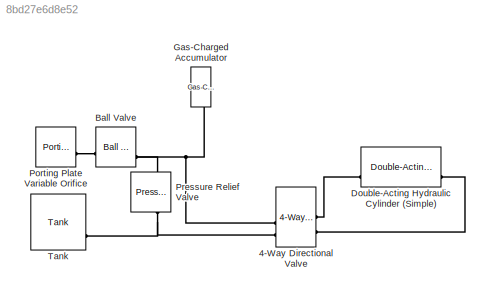
MODEL slx_8bd27e6d8e52
KIND model
CONFIG AbsTol = auto
CONFIG EnableMultiTasking = off
CONFIG FixedStep = auto
CONFIG MaxStep = auto
CONFIG MinStep = auto
CONFIG RelTol = 1e-3
CONFIG SampleTimeConstraint = Unconstrained
CONFIG SolverName = VariableStepAuto
CONFIG StartTime = 0.0
CONFIG StopTime = 10.0
BLOCK [Reference] 4-Way Directional Valve  REF=sh_lib/Valves/Directional Valves/4-Way Directional
Valve
  SourceBlock = sh_lib/Valves/Directional Valves/4-Way Directional\nValve
  SourceType = 4-Way Directional\nValve
BLOCK [Reference] Ball Valve  REF=sh_lib/Valves/Flow Control Valves/Ball Valve
  SourceBlock = sh_lib/Valves/Flow Control Valves/Ball Valve
  SourceType = Ball Valve
BLOCK [Reference] Double-Acting Hydraulic Cylinder (Simple)  REF=sh_lib/Hydraulic Cylinders/Double-Acting
Hydraulic Cylinder
(Simple)
  SourceBlock = sh_lib/Hydraulic Cylinders/Double-Acting\nHydraulic Cylinder\n(Simple)
  SourceType = Double-Acting\nHydraulic Cylinder\n(Simple)
BLOCK [Reference] Gas-Charged Accumulator  REF=sh_lib/Accumulators/Gas-Charged
Accumulator
  NameLocation = right
  SourceBlock = sh_lib/Accumulators/Gas-Charged\nAccumulator
  SourceType = Gas-Charged\nAccumulator
BLOCK [Reference] Porting Plate Variable Orifice  REF=sh_lib/Pumps and Motors/Porting Plate
Variable Orifice
  SourceBlock = sh_lib/Pumps and Motors/Porting Plate\nVariable Orifice
  SourceType = Porting Plate\nVariable Orifice
BLOCK [Reference] Pressure Relief Valve  REF=sh_lib/Valves/Pressure Control
Valves/Pressure Relief
Valve
  NameLocation = right
  SourceBlock = sh_lib/Valves/Pressure Control\nValves/Pressure Relief\nValve
  SourceType = Pressure Relief\nValve
BLOCK [Reference] Tank  REF=sh_lib/Low-Pressure Blocks/Tank
  SourceBlock = sh_lib/Low-Pressure Blocks/Tank
  SourceType = Tank
PLINE 4-Way Directional Valve:LConn1 -- Double-Acting Hydraulic Cylinder (Simple):LConn2
PLINE 4-Way Directional Valve:LConn2 -- Double-Acting Hydraulic Cylinder (Simple):RConn2
PNET net1: 4-Way Directional Valve:RConn2 -- Ball Valve:LConn2 -- Gas-Charged Accumulator:RConn1 -- Pressure Relief Valve:LConn1
PNET net2: 4-Way Directional Valve:RConn3 -- Pressure Relief Valve:RConn1 -- Tank:RConn2
PLINE Ball Valve:RConn1 -- Porting Plate Variable Orifice:RConn1
note: PNET lines group multi-terminal physical nets as a canonical sorted terminal list (undirected conserving connections); 2-terminal nets keep the pairwise PLINE form
